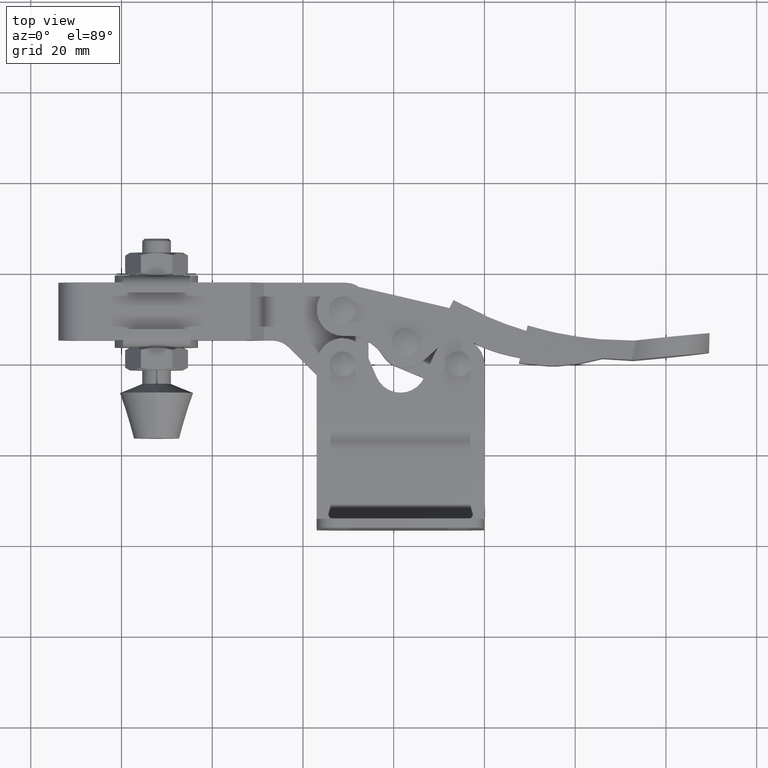
[diagram: clean part render]
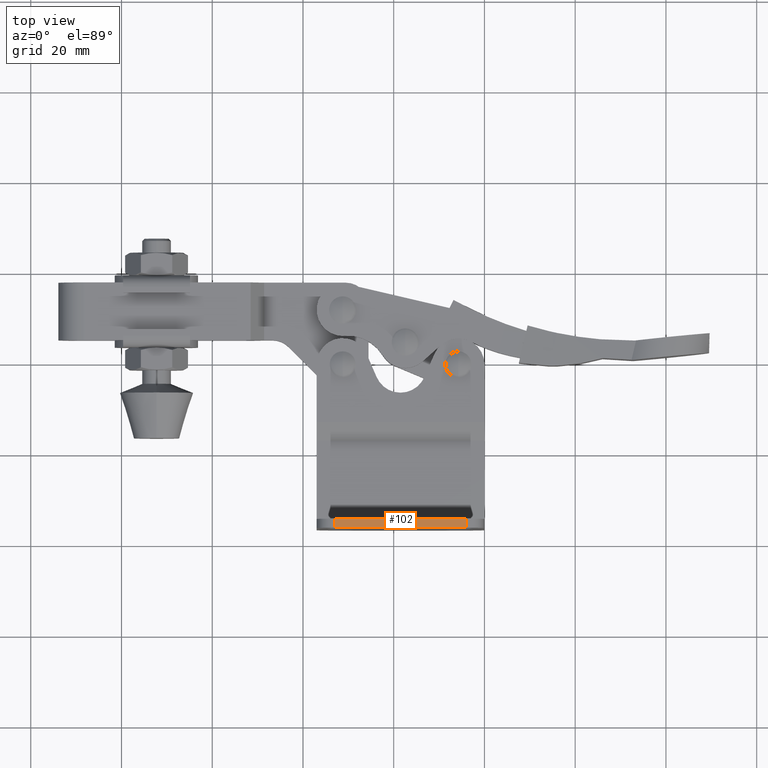
[diagram: same view with one face highlighted and labeled with its STEP entity id]
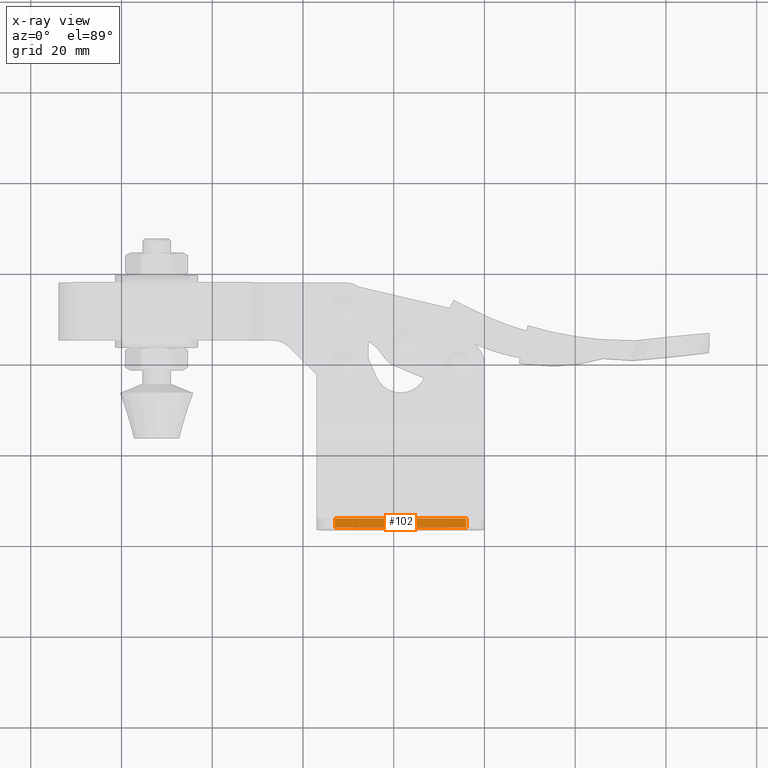
[diagram: x-ray of the same camera — body ghosted, the highlighted face saturated]
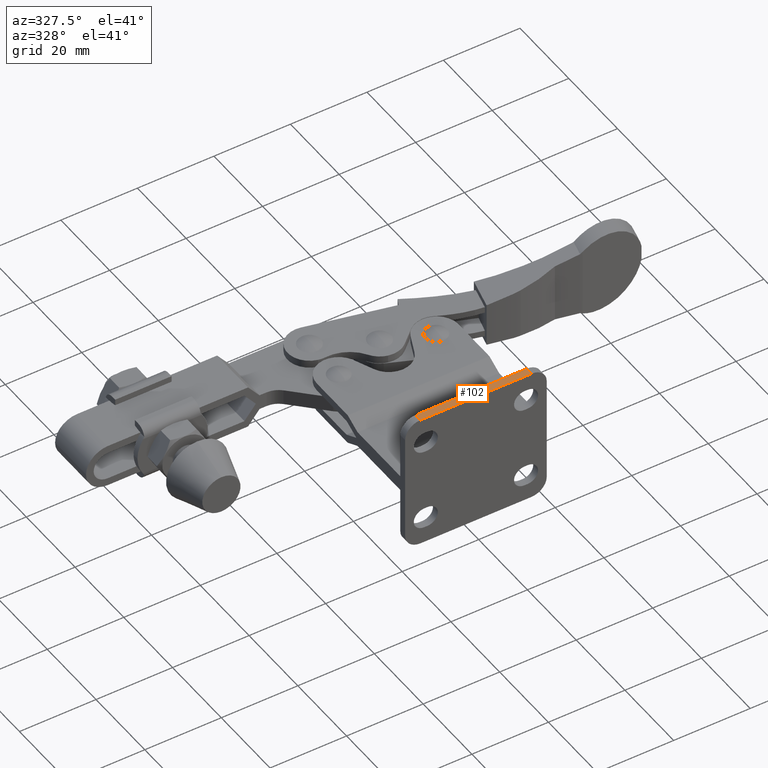
[diagram: same view with one face highlighted and labeled with its STEP entity id]
A machine part, top view. The second image highlights one B-rep face of the part: STEP entity #102.
The next image is the same camera in x-ray: the body ghosted, the highlighted face saturated — about 0% of this face is hidden behind the body in this view.
A second angle (auxiliary view) of the same face is appended — the face is thin or edge-on in the first view.
In plain terms, the highlighted planar face has unit normal (-0, 0, -1).
Its self-contained STEP definition (entity closure, byte-faithful):
#10 = CARTESIAN_POINT ( 'NONE',  ( -33.00000000000098800, -51.49999999999933900, 16.00000000000013900 ) ) ;
#102 = ADVANCED_FACE ( 'NONE', ( #158 ), #165, .F. ) ;
#158 = FACE_OUTER_BOUND ( 'NONE', #4558, .T. ) ;
#165 = PLANE ( 'NONE',  #7891 ) ;
#827 = DIRECTION ( 'NONE',  ( -1.000000000000000000, 1.739407229361945700E-014, -5.108476571654995800E-015 ) ) ;
#833 = VERTEX_POINT ( 'NONE', #1738 ) ;
#963 = VERTEX_POINT ( 'NONE', #7265 ) ;
#1098 = CARTESIAN_POINT ( 'NONE',  ( -33.00000000000034800, -14.51999999999934600, 16.00000000000014200 ) ) ;
#1457 = CARTESIAN_POINT ( 'NONE',  ( -2.498001805406602200E-013, -16.49999999999992200, 16.00000000000015300 ) ) ;
#1738 = CARTESIAN_POINT ( 'NONE',  ( -33.00000000000038400, -16.51999999999934900, 16.00000000000014200 ) ) ;
#1811 = VECTOR ( 'NONE', #3030, 1000.000000000000000 ) ;
#2483 = EDGE_CURVE ( 'NONE', #833, #963, #3527, .T. ) ;
#2925 = VERTEX_POINT ( 'NONE', #8835 ) ;
#3030 = DIRECTION ( 'NONE',  ( 1.733856114238818700E-014, 1.000000000000000000, 1.243066483171203200E-016 ) ) ;
#3099 = DIRECTION ( 'NONE',  ( 1.733856114238818700E-014, 1.000000000000000000, 1.243066483171203200E-016 ) ) ;
#3527 = LINE ( 'NONE', #10, #1811 ) ;
#3678 = ORIENTED_EDGE ( 'NONE', *, *, #2483, .F. ) ;
#3737 = LINE ( 'NONE', #1098, #7362 ) ;
#3754 = DIRECTION ( 'NONE',  ( -1.000000000000000000, 1.739407229361944200E-014, 3.587580537970714700E-017 ) ) ;
#3843 = DIRECTION ( 'NONE',  ( -3.587580537970505800E-017, 1.201649530779790900E-016, -1.000000000000000000 ) ) ;
#3904 = CARTESIAN_POINT ( 'NONE',  ( -4.000000000001168800, -51.49999999999984400, 16.00000000000013500 ) ) ;
#3939 = VERTEX_POINT ( 'NONE', #9859 ) ;
#4037 = VECTOR ( 'NONE', #827, 1000.000000000000000 ) ;
#4558 = EDGE_LOOP ( 'NONE', ( #8575, #3678, #9022, #6164 ) ) ;
#5192 = CARTESIAN_POINT ( 'NONE',  ( -4.000000000000565800, -16.51999999999985000, 16.00000000000029100 ) ) ;
#5724 = EDGE_CURVE ( 'NONE', #963, #3939, #3737, .T. ) ;
#5915 = EDGE_CURVE ( 'NONE', #2925, #833, #6463, .T. ) ;
#6164 = ORIENTED_EDGE ( 'NONE', *, *, #7486, .T. ) ;
#6463 = LINE ( 'NONE', #5192, #4037 ) ;
#7265 = CARTESIAN_POINT ( 'NONE',  ( -33.00000000000034800, -14.51999999999934600, 16.00000000000014200 ) ) ;
#7362 = VECTOR ( 'NONE', #9173, 1000.000000000000000 ) ;
#7486 = EDGE_CURVE ( 'NONE', #2925, #3939, #8456, .T. ) ;
#7891 = AXIS2_PLACEMENT_3D ( 'NONE', #1457, #3843, #3754 ) ;
#8456 = LINE ( 'NONE', #3904, #8612 ) ;
#8575 = ORIENTED_EDGE ( 'NONE', *, *, #5724, .F. ) ;
#8612 = VECTOR ( 'NONE', #3099, 1000.000000000000000 ) ;
#8835 = CARTESIAN_POINT ( 'NONE',  ( -4.000000000000565800, -16.51999999999985000, 16.00000000000029100 ) ) ;
#9022 = ORIENTED_EDGE ( 'NONE', *, *, #5915, .F. ) ;
#9173 = DIRECTION ( 'NONE',  ( 1.000000000000000000, -1.739407229361944200E-014, -1.555119071712118600E-016 ) ) ;
#9859 = CARTESIAN_POINT ( 'NONE',  ( -4.000000000000531100, -14.51999999999985200, 16.00000000000013900 ) ) ;